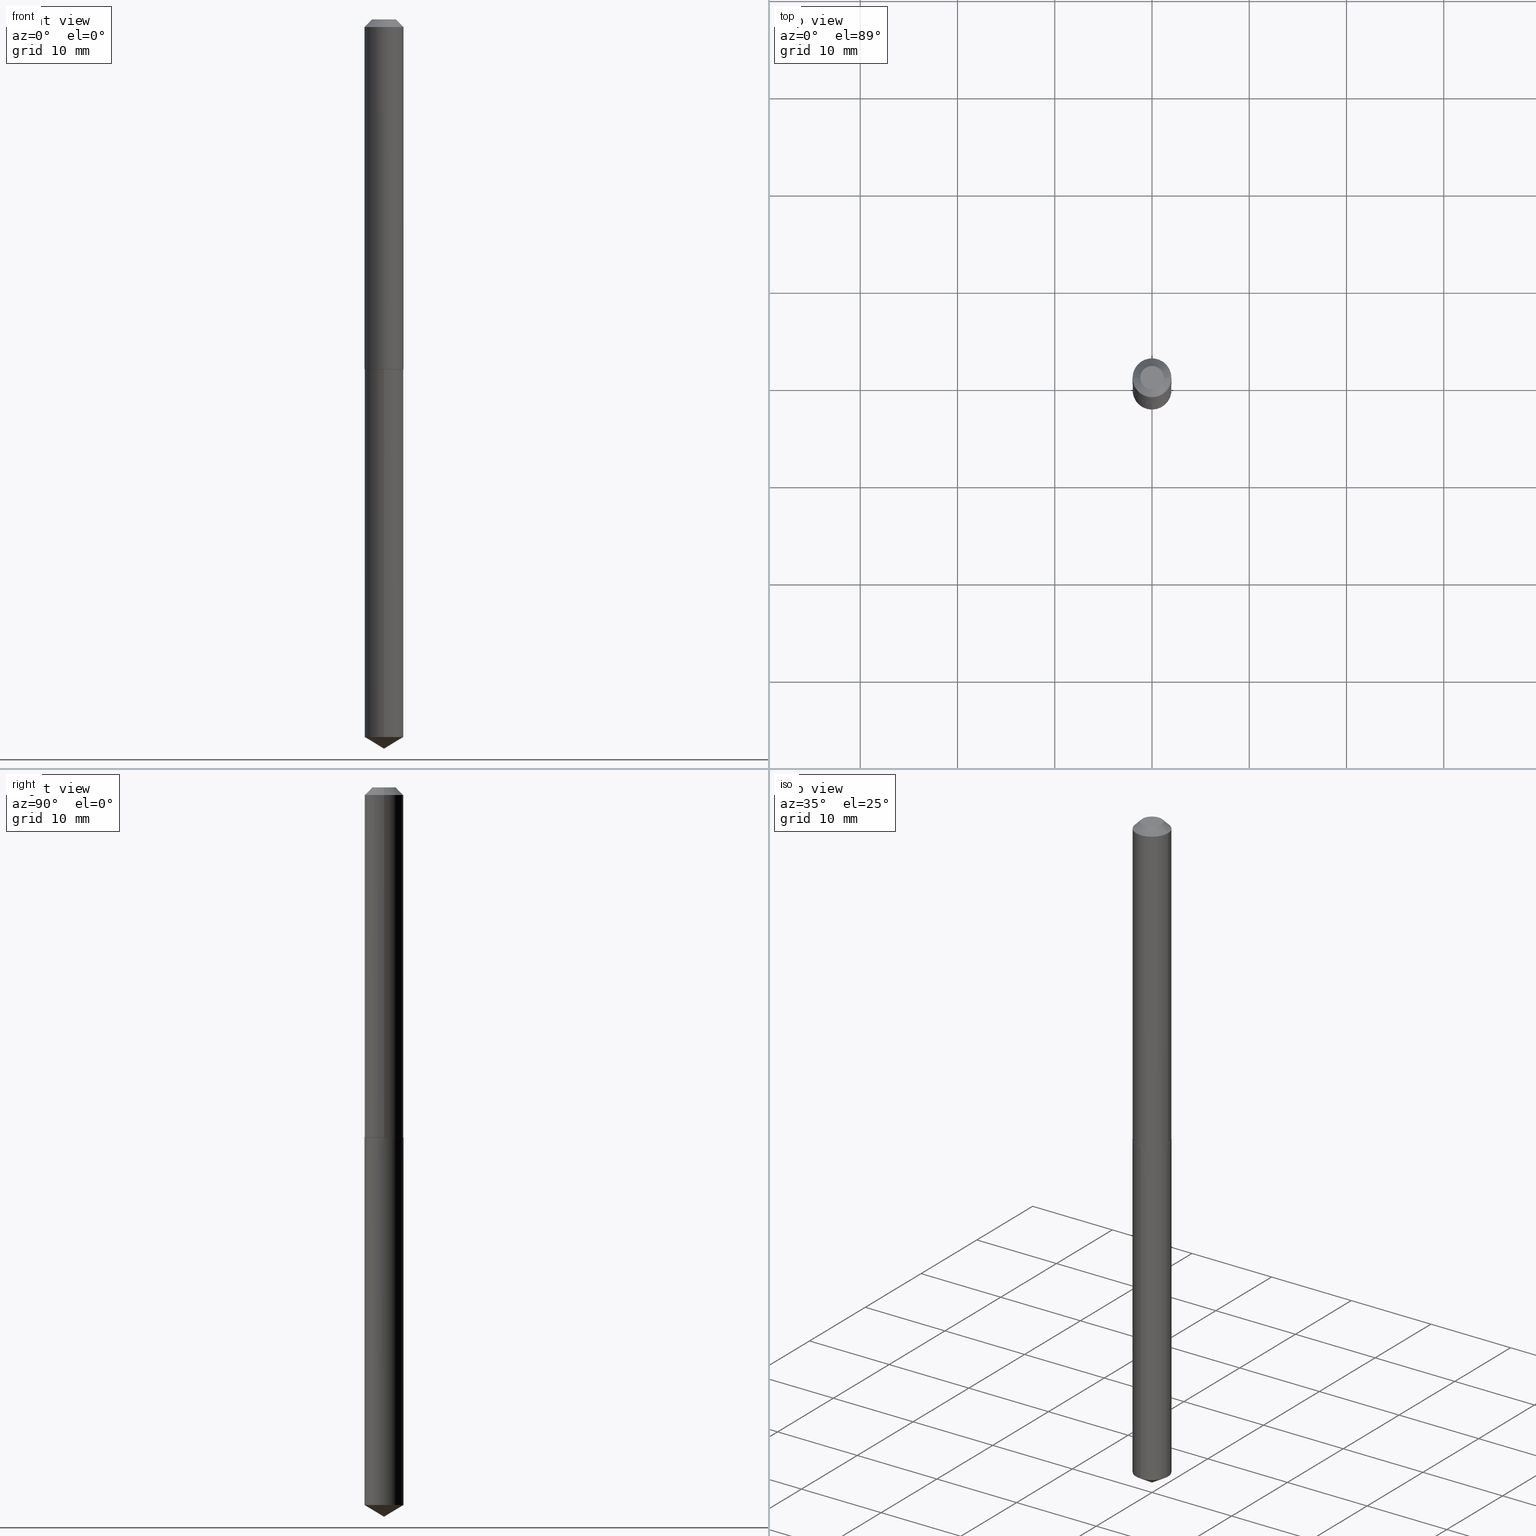
[diagram: canonical four-view strip — front | top / right | iso, engineering-drawing reading convention]
A machine part, canonical four-view strip (front | top / right | iso — engineering-drawing reading convention). The complete STEP part file that produces these views, byte-faithful:
ISO-10303-21;
HEADER;
FILE_DESCRIPTION (( 'STEP AP203' ),
    '1' );
FILE_NAME ('68277.STEP',
    '2024-04-23T12:56:48',
    ( '' ),
    ( '' ),
    'SwSTEP 2.0',
    'SolidWorks 2023',
    '' );
FILE_SCHEMA (( 'CONFIG_CONTROL_DESIGN' ));
ENDSEC;

DATA;
#1 = APPROVAL_ROLE ( '' ) ;
#2 = APPROVAL_PERSON_ORGANIZATION ( #325, #74, #1 ) ;
#3 = EDGE_CURVE ( 'NONE', #166, #196, #264, .T. ) ;
#4 = EDGE_CURVE ( 'NONE', #384, #83, #84, .T. ) ;
#5 = CARTESIAN_POINT ( 'NONE',  ( 3.464984751483719742E-29, -4.947079909006852451E-15, -1.416899999999999826 ) ) ;
#6 = CARTESIAN_POINT ( 'NONE',  ( 0.07875000000000008382, -5.499083108677941345E-16, 3.839989210939303220E-30 ) ) ;
#7 = CLOSED_SHELL ( 'NONE', ( #204, #92, #181, #358, #179, #208, #273, #155 ) ) ;
#8 = AXIS2_PLACEMENT_3D ( 'NONE', #47, #278, #56 ) ;
#9 = DIRECTION ( 'NONE',  ( -2.445110311145860319E-29, 3.491994724143659644E-15, 1.000000000000000000 ) ) ;
#10 = CARTESIAN_POINT ( 'NONE',  ( -8.904375562056331794E-28, 1.271696729006239272E-13, 36.41727874015747801 ) ) ;
#11 = DIRECTION ( 'NONE',  ( 2.445468806185136597E-29, -3.491481338843145583E-15, -1.000000000000000000 ) ) ;
#12 = AXIS2_PLACEMENT_3D ( 'NONE', #10, #37, #64 ) ;
#13 = AXIS2_PLACEMENT_3D ( 'NONE', #307, #78, #312 ) ;
#14 = CC_DESIGN_APPROVAL ( #74, ( #121 ) ) ;
#15 = DIRECTION ( 'NONE',  ( -2.445468806185136597E-29, 3.491481338843145583E-15, 1.000000000000000000 ) ) ;
#16 = DIRECTION ( 'NONE',  ( 1.000000000000000000, -6.982962677686261189E-15, 0.000000000000000000 ) ) ;
#17 = ORIENTED_EDGE ( 'NONE', *, *, #72, .T. ) ;
#18 = LINE ( 'NONE', #42, #227 ) ;
#19 = DIRECTION ( 'NONE',  ( -2.445110311145860319E-29, 3.491994724143659644E-15, 1.000000000000000000 ) ) ;
#20 = CONICAL_SURFACE ( 'NONE', #12, 65.52281426576982426, 1.029744258676663859 ) ;
#21 = CARTESIAN_POINT ( 'NONE',  ( -5.499083108677586358E-16, -0.07875000000000495493, -1.417399999999999549 ) ) ;
#22 = AXIS2_PLACEMENT_3D ( 'NONE', #49, #372, #102 ) ;
#23 = ADVANCED_FACE ( 'NONE', ( #295 ), #20, .T. ) ;
#24 = SECURITY_CLASSIFICATION ( '', '', #385 ) ;
#25 = ORIENTED_EDGE ( 'NONE', *, *, #120, .T. ) ;
#26 = ORIENTED_EDGE ( 'NONE', *, *, #4, .F. ) ;
#27 = COORDINATED_UNIVERSAL_TIME_OFFSET ( 5, 0, .BEHIND. ) ;
#28 = EDGE_LOOP ( 'NONE', ( #67, #26 ) ) ;
#29 =( LENGTH_UNIT ( ) NAMED_UNIT ( * ) SI_UNIT ( $, .METRE. ) );
#30 = CLOSED_SHELL ( 'NONE', ( #150, #225, #23, #380, #54 ) ) ;
#31 = CONICAL_SURFACE ( 'NONE', #351, 0.07875000000000000056, 0.7853981633974450594 ) ;
#32 = LOCAL_TIME ( 8, 56, 48.00000000000000000, #34 ) ;
#33 = CARTESIAN_POINT ( 'NONE',  ( 5.595524044111500950E-16, 0.07874999999999504618, -1.417399999999999993 ) ) ;
#34 = COORDINATED_UNIVERSAL_TIME_OFFSET ( 5, 0, .BEHIND. ) ;
#35 = CARTESIAN_POINT ( 'NONE',  ( -0.07875000000000015321, -4.387527504595772071E-15, -1.416899999999999826 ) ) ;
#36 = EDGE_CURVE ( 'NONE', #221, #168, #129, .T. ) ;
#37 = DIRECTION ( 'NONE',  ( -2.445110311145860319E-29, 3.491994724143659644E-15, 1.000000000000000000 ) ) ;
#38 = DIRECTION ( 'NONE',  ( 1.000000000000000000, -6.982962677686267499E-15, 4.876176775795935232E-29 ) ) ;
#39 = AXIS2_PLACEMENT_3D ( 'NONE', #128, #341, #218 ) ;
#40 = FACE_OUTER_BOUND ( 'NONE', #313, .T. ) ;
#41 = EDGE_LOOP ( 'NONE', ( #214, #52, #87, #291 ) ) ;
#42 = CARTESIAN_POINT ( 'NONE',  ( 5.595524044111134130E-16, 0.07874999999999504618, -1.417399999999999993 ) ) ;
#43 = PRODUCT ( '68277', '68277', '', ( #141 ) ) ;
#44 = CARTESIAN_POINT ( 'NONE',  ( 7.642090019328601786E-31, -1.091087918388490144E-16, -0.03125000000000020123 ) ) ;
#45 = CONICAL_SURFACE ( 'NONE', #257, 0.07875000000000015321, 0.7853981633973801113 ) ;
#46 = VECTOR ( 'NONE', #376, 39.37007874015748143 ) ;
#47 = CARTESIAN_POINT ( 'NONE',  ( -2.949913012720682071E-47, 4.211693974208512757E-33, 1.206277097160140970E-18 ) ) ;
#48 = EDGE_LOOP ( 'NONE', ( #347, #381, #365 ) ) ;
#49 = CARTESIAN_POINT ( 'NONE',  ( 3.466207485886812543E-29, -4.948825649676273954E-15, -1.417399999999999771 ) ) ;
#50 = ORIENTED_EDGE ( 'NONE', *, *, #308, .T. ) ;
#51 = DIRECTION ( 'NONE',  ( -2.445468806185136597E-29, 3.491481338843145583E-15, 1.000000000000000000 ) ) ;
#52 = ORIENTED_EDGE ( 'NONE', *, *, #69, .T. ) ;
#53 = APPROVAL_DATE_TIME ( #353, #74 ) ;
#54 = ADVANCED_FACE ( 'NONE', ( #60 ), #65, .F. ) ;
#55 = ORIENTED_EDGE ( 'NONE', *, *, #69, .F. ) ;
#56 = DIRECTION ( 'NONE',  ( 1.000000000000000000, -6.982962677686267499E-15, 4.876182450887182109E-29 ) ) ;
#57 = EDGE_LOOP ( 'NONE', ( #112, #50, #224, #193 ) ) ;
#58 = LINE ( 'NONE', #173, #76 ) ;
#59 = CALENDAR_DATE ( 2024, 23, 4 ) ;
#60 = FACE_OUTER_BOUND ( 'NONE', #116, .T. ) ;
#61 = EDGE_CURVE ( 'NONE', #241, #196, #58, .T. ) ;
#62 = AXIS2_PLACEMENT_3D ( 'NONE', #343, #15, #251 ) ;
#63 = LINE ( 'NONE', #183, #360 ) ;
#64 = DIRECTION ( 'NONE',  ( -6.982962677686265133E-15, -1.000000000000000000, 3.468864327941520456E-15 ) ) ;
#65 = PLANE ( 'NONE',  #330 ) ;
#66 = VECTOR ( 'NONE', #293, 39.37007874015748143 ) ;
#67 = ORIENTED_EDGE ( 'NONE', *, *, #279, .F. ) ;
#68 = CC_DESIGN_APPROVAL ( #222, ( #146 ) ) ;
#69 = EDGE_CURVE ( 'NONE', #384, #81, #99, .T. ) ;
#70 = CARTESIAN_POINT ( 'NONE',  ( 0.000000000000000000, 0.000000000000000000, 0.000000000000000000 ) ) ;
#71 = ORIENTED_EDGE ( 'NONE', *, *, #308, .F. ) ;
#72 = EDGE_CURVE ( 'NONE', #83, #142, #63, .T. ) ;
#73 = CARTESIAN_POINT ( 'NONE',  ( 7.642090019328601786E-31, -1.091087918388490144E-16, -0.03125000000000020123 ) ) ;
#74 = APPROVAL ( #317, 'UNSPECIFIED' ) ;
#75 = CARTESIAN_POINT ( 'NONE',  ( 3.466207485886812543E-29, -4.948825649676273954E-15, -1.417399999999999771 ) ) ;
#76 = VECTOR ( 'NONE', #334, 39.37007874015748854 ) ;
#77 = VECTOR ( 'NONE', #185, 39.37007874015748143 ) ;
#78 = DIRECTION ( 'NONE',  ( -2.445110311145860319E-29, 3.491994724143659644E-15, 1.000000000000000000 ) ) ;
#79 = ORIENTED_EDGE ( 'NONE', *, *, #263, .F. ) ;
#80 = CARTESIAN_POINT ( 'NONE',  ( 7.104732681127439624E-29, -1.014520093283874505E-14, -2.905482226251580258 ) ) ;
#81 = VERTEX_POINT ( 'NONE', #144 ) ;
#82 = PERSON_AND_ORGANIZATION ( #236, #203 ) ;
#83 = VERTEX_POINT ( 'NONE', #127 ) ;
#84 = CIRCLE ( 'NONE', #298, 0.07825000000000031930 ) ;
#85 = PERSON_AND_ORGANIZATION_ROLE ( 'creator' ) ;
#86 = AXIS2_PLACEMENT_3D ( 'NONE', #70, #103, #215 ) ;
#87 = ORIENTED_EDGE ( 'NONE', *, *, #248, .F. ) ;
#88 = DIRECTION ( 'NONE',  ( -6.982962677686264344E-15, -1.000000000000000000, 3.469013325287953293E-15 ) ) ;
#89 = ORIENTED_EDGE ( 'NONE', *, *, #262, .F. ) ;
#90 = CARTESIAN_POINT ( 'NONE',  ( 3.464984751483719742E-29, -4.947079909006852451E-15, -1.416899999999999826 ) ) ;
#91 = AXIS2_PLACEMENT_3D ( 'NONE', #117, #231, #175 ) ;
#92 = ADVANCED_FACE ( 'NONE', ( #184 ), #176, .T. ) ;
#93 = APPROVAL_ROLE ( '' ) ;
#94 = CARTESIAN_POINT ( 'NONE',  ( -0.04749999999999999362, 3.862451231095210752E-16, 1.206277097157630713E-18 ) ) ;
#95 = AXIS2_PLACEMENT_3D ( 'NONE', #210, #9, #126 ) ;
#96 = CIRCLE ( 'NONE', #377, 0.07875000000000015321 ) ;
#97 = DIRECTION ( 'NONE',  ( -2.445468806185136597E-29, 3.491481338843145583E-15, 1.000000000000000000 ) ) ;
#98 = PERSON_AND_ORGANIZATION ( #236, #203 ) ;
#99 = LINE ( 'NONE', #35, #66 ) ;
#100 = CARTESIAN_POINT ( 'NONE',  ( 7.642090019328601786E-31, -1.091087918388490144E-16, -0.03125000000000020123 ) ) ;
#101 = DIRECTION ( 'NONE',  ( -1.000000000000000000, 6.982962677686265922E-15, 0.000000000000000000 ) ) ;
#102 = DIRECTION ( 'NONE',  ( -6.982962677686264344E-15, -1.000000000000000000, 3.469013325287953293E-15 ) ) ;
#103 = DIRECTION ( 'NONE',  ( -2.445468806185136597E-29, 3.491481338843145583E-15, 1.000000000000000000 ) ) ;
#104 = ORIENTED_EDGE ( 'NONE', *, *, #337, .F. ) ;
#105 = AXIS2_PLACEMENT_3D ( 'NONE', #373, #190, #132 ) ;
#106 = CARTESIAN_POINT ( 'NONE',  ( 0.07875000000000000056, -6.590171027066424463E-16, -0.03125000000000020123 ) ) ;
#107 = PRODUCT_DEFINITION_SHAPE ( 'NONE', 'NONE',  #146 ) ;
#108 = ORIENTED_EDGE ( 'NONE', *, *, #36, .F. ) ;
#109 = DIMENSIONAL_EXPONENTS ( 1.000000000000000000, 0.000000000000000000, 0.000000000000000000, 0.000000000000000000, 0.000000000000000000, 0.000000000000000000, 0.000000000000000000 ) ;
#110 = VERTEX_POINT ( 'NONE', #33 ) ;
#111 = DIRECTION ( 'NONE',  ( -2.445110311145860319E-29, 3.491994724143659644E-15, 1.000000000000000000 ) ) ;
#112 = ORIENTED_EDGE ( 'NONE', *, *, #262, .T. ) ;
#113 = PERSON_AND_ORGANIZATION ( #236, #203 ) ;
#114 = VECTOR ( 'NONE', #232, 39.37007874015748143 ) ;
#115 = LOCAL_TIME ( 8, 56, 48.00000000000000000, #125 ) ;
#116 = EDGE_LOOP ( 'NONE', ( #288, #388 ) ) ;
#117 = CARTESIAN_POINT ( 'NONE',  ( 0.000000000000000000, 0.000000000000000000, 0.000000000000000000 ) ) ;
#118 = CARTESIAN_POINT ( 'NONE',  ( 0.07875000000000000056, -6.493730091633570889E-16, -0.03125000000000020123 ) ) ;
#119 = CALENDAR_DATE ( 2024, 23, 4 ) ;
#120 = EDGE_CURVE ( 'NONE', #142, #221, #153, .T. ) ;
#121 = PRODUCT_DEFINITION_FORMATION_WITH_SPECIFIED_SOURCE ( 'ANY', '', #43, .NOT_KNOWN. ) ;
#122 = DIRECTION ( 'NONE',  ( -2.445468806185136597E-29, 3.491481338843145583E-15, 1.000000000000000000 ) ) ;
#123 = DIRECTION ( 'NONE',  ( 1.000000000000000000, -6.982962677686264344E-15, 0.000000000000000000 ) ) ;
#124 = AXIS2_PLACEMENT_3D ( 'NONE', #75, #188, #309 ) ;
#125 = COORDINATED_UNIVERSAL_TIME_OFFSET ( 5, 0, .BEHIND. ) ;
#126 = DIRECTION ( 'NONE',  ( -6.982962677686264344E-15, -1.000000000000000000, 3.469013325287953293E-15 ) ) ;
#127 = CARTESIAN_POINT ( 'NONE',  ( 0.07825000000000031930, -5.495242479205226659E-15, -1.417399999999999771 ) ) ;
#128 = CARTESIAN_POINT ( 'NONE',  ( -2.949913012720682071E-47, 4.211693974208512757E-33, 1.206277097160140970E-18 ) ) ;
#129 = CIRCLE ( 'NONE', #234, 0.07875000000000000056 ) ;
#130 = CIRCLE ( 'NONE', #265, 0.07875000000000015321 ) ;
#131 = DIRECTION ( 'NONE',  ( -2.445468806185136597E-29, 3.491481338843145583E-15, 1.000000000000000000 ) ) ;
#132 = DIRECTION ( 'NONE',  ( -6.982962677686265133E-15, -1.000000000000000000, 3.468864327941520456E-15 ) ) ;
#133 = ORIENTED_EDGE ( 'NONE', *, *, #275, .T. ) ;
#134 = CARTESIAN_POINT ( 'NONE',  ( 3.464984751483719742E-29, -4.947079909006852451E-15, -1.416899999999999826 ) ) ;
#135 = DIRECTION ( 'NONE',  ( -6.982962677686264344E-15, -1.000000000000000000, 6.938026650575906587E-15 ) ) ;
#136 = APPROVAL_PERSON_ORGANIZATION ( #201, #222, #223 ) ;
#137 = DIRECTION ( 'NONE',  ( 1.000000000000000000, -6.982962677686261189E-15, 0.000000000000000000 ) ) ;
#138 = EDGE_LOOP ( 'NONE', ( #319, #354, #256, #340 ) ) ;
#139 =( CONVERSION_BASED_UNIT ( 'INCH', #199 ) LENGTH_UNIT ( ) NAMED_UNIT ( #109 ) );
#140 = ORIENTED_EDGE ( 'NONE', *, *, #244, .T. ) ;
#141 = MECHANICAL_CONTEXT ( 'NONE', #329, 'mechanical' ) ;
#142 = VERTEX_POINT ( 'NONE', #362 ) ;
#143 = CARTESIAN_POINT ( 'NONE',  ( 3.466207485886812543E-29, -4.948825649676273954E-15, -1.417399999999999771 ) ) ;
#144 = CARTESIAN_POINT ( 'NONE',  ( -0.07875000000000015321, -4.387527504595772071E-15, -1.416899999999999826 ) ) ;
#145 = DATE_AND_TIME ( #59, #285 ) ;
#146 = PRODUCT_DEFINITION ( 'UNKNOWN', '', #121, #157 ) ;
#147 = APPROVAL_STATUS ( 'not_yet_approved' ) ;
#148 = DATE_AND_TIME ( #335, #32 ) ;
#149 = AXIS2_PLACEMENT_3D ( 'NONE', #90, #326, #202 ) ;
#150 = ADVANCED_FACE ( 'NONE', ( #304 ), #336, .T. ) ;
#151 = CARTESIAN_POINT ( 'NONE',  ( 0.000000000000000000, 0.000000000000000000, 0.000000000000000000 ) ) ;
#152 = LINE ( 'NONE', #118, #114 ) ;
#153 = LINE ( 'NONE', #6, #284 ) ;
#154 = LOCAL_TIME ( 8, 56, 48.00000000000000000, #27 ) ;
#155 = ADVANCED_FACE ( 'NONE', ( #40 ), #272, .F. ) ;
#156 = DIRECTION ( 'NONE',  ( -2.445468806185136597E-29, 3.491481338843145583E-15, 1.000000000000000000 ) ) ;
#157 = DESIGN_CONTEXT ( 'detailed design', #367, 'design' ) ;
#158 = VERTEX_POINT ( 'NONE', #390 ) ;
#159 = DIRECTION ( 'NONE',  ( -2.445110311145860319E-29, 3.491994724143659644E-15, 1.000000000000000000 ) ) ;
#160 = EDGE_CURVE ( 'NONE', #158, #221, #152, .T. ) ;
#161 = DIRECTION ( 'NONE',  ( 1.000000000000000000, -6.982962677686264344E-15, 0.000000000000000000 ) ) ;
#162 = CIRCLE ( 'NONE', #22, 0.07875000000000000056 ) ;
#163 = LINE ( 'NONE', #281, #77 ) ;
#164 = ORIENTED_EDGE ( 'NONE', *, *, #369, .F. ) ;
#165 = CYLINDRICAL_SURFACE ( 'NONE', #86, 0.07875000000000008382 ) ;
#166 = VERTEX_POINT ( 'NONE', #269 ) ;
#167 = DIRECTION ( 'NONE',  ( -2.445468806185136597E-29, 3.491481338843145583E-15, 1.000000000000000000 ) ) ;
#168 = VERTEX_POINT ( 'NONE', #356 ) ;
#169 = PRODUCT_RELATED_PRODUCT_CATEGORY ( 'detail', '', ( #43 ) ) ;
#170 = ORIENTED_EDGE ( 'NONE', *, *, #3, .T. ) ;
#171 = DATE_TIME_ROLE ( 'creation_date' ) ;
#172 = ORIENTED_EDGE ( 'NONE', *, *, #160, .T. ) ;
#173 = CARTESIAN_POINT ( 'NONE',  ( 7.219921726751495995E-29, -1.031116202145139652E-14, -2.952799999999999869 ) ) ;
#174 = CIRCLE ( 'NONE', #8, 0.04749999999999999362 ) ;
#175 = DIRECTION ( 'NONE',  ( 1.000000000000000000, 0.000000000000000000, 0.000000000000000000 ) ) ;
#176 = CYLINDRICAL_SURFACE ( 'NONE', #255, 0.07875000000000008382 ) ;
#177 = PERSON_AND_ORGANIZATION ( #236, #203 ) ;
#178 = UNCERTAINTY_MEASURE_WITH_UNIT (LENGTH_MEASURE( 1.000000000000000082E-05 ), #139, 'distance_accuracy_value', 'NONE');
#179 = ADVANCED_FACE ( 'NONE', ( #182 ), #318, .T. ) ;
#180 = CIRCLE ( 'NONE', #62, 0.07825000000000031930 ) ;
#181 = ADVANCED_FACE ( 'NONE', ( #267 ), #45, .T. ) ;
#182 = FACE_OUTER_BOUND ( 'NONE', #350, .T. ) ;
#183 = CARTESIAN_POINT ( 'NONE',  ( 0.07875000000000015321, -5.496988219874646585E-15, -1.416899999999999826 ) ) ;
#184 = FACE_OUTER_BOUND ( 'NONE', #200, .T. ) ;
#185 = DIRECTION ( 'NONE',  ( -2.445110311145860319E-29, 3.491994724143659644E-15, 1.000000000000000000 ) ) ;
#186 = DIRECTION ( 'NONE',  ( -1.000000000000000000, 6.982962677686265922E-15, 0.000000000000000000 ) ) ;
#187 = MANIFOLD_SOLID_BREP ( 'Body-Move/Copy2[2]', #7 ) ;
#188 = DIRECTION ( 'NONE',  ( -2.438088387897960049E-29, 3.491481338843145188E-15, 1.000000000000000000 ) ) ;
#189 = AXIS2_PLACEMENT_3D ( 'NONE', #80, #192, #314 ) ;
#190 = DIRECTION ( 'NONE',  ( -2.445110311145860319E-29, 3.491994724143659644E-15, 1.000000000000000000 ) ) ;
#191 = ORIENTED_EDGE ( 'NONE', *, *, #120, .F. ) ;
#192 = DIRECTION ( 'NONE',  ( -2.445110311145860319E-29, 3.491994724143659644E-15, 1.000000000000000000 ) ) ;
#193 = ORIENTED_EDGE ( 'NONE', *, *, #275, .F. ) ;
#194 = CC_DESIGN_PERSON_AND_ORGANIZATION_ASSIGNMENT ( #287, #85, ( #121 ) ) ;
#195 = COORDINATED_UNIVERSAL_TIME_OFFSET ( 5, 0, .BEHIND. ) ;
#196 = VERTEX_POINT ( 'NONE', #359 ) ;
#197 = PERSON_AND_ORGANIZATION ( #236, #203 ) ;
#198 = VERTEX_POINT ( 'NONE', #94 ) ;
#199 = LENGTH_MEASURE_WITH_UNIT ( LENGTH_MEASURE( 0.02539999999999999897 ), #29 );
#200 = EDGE_LOOP ( 'NONE', ( #286, #368, #108, #191 ) ) ;
#201 = PERSON_AND_ORGANIZATION ( #236, #203 ) ;
#202 = DIRECTION ( 'NONE',  ( 1.000000000000000000, -6.982962677686261189E-15, 0.000000000000000000 ) ) ;
#203 = ORGANIZATION ( 'UNSPECIFIED', 'UNSPECIFIED', '' ) ;
#204 = ADVANCED_FACE ( 'NONE', ( #207 ), #299, .T. ) ;
#205 = EDGE_CURVE ( 'NONE', #81, #168, #339, .T. ) ;
#206 = APPROVAL ( #302, 'UNSPECIFIED' ) ;
#207 = FACE_OUTER_BOUND ( 'NONE', #345, .T. ) ;
#208 = ADVANCED_FACE ( 'NONE', ( #346 ), #165, .T. ) ;
#209 = EDGE_CURVE ( 'NONE', #198, #158, #344, .T. ) ;
#210 = CARTESIAN_POINT ( 'NONE',  ( 3.466207485886812543E-29, -4.948825649676273954E-15, -1.417399999999999771 ) ) ;
#211 = CC_DESIGN_PERSON_AND_ORGANIZATION_ASSIGNMENT ( #177, #253, ( #43 ) ) ;
#212 = CARTESIAN_POINT ( 'NONE',  ( 3.466207485886812543E-29, -4.948825649676273954E-15, -1.417399999999999771 ) ) ;
#213 = LINE ( 'NONE', #371, #277 ) ;
#214 = ORIENTED_EDGE ( 'NONE', *, *, #279, .T. ) ;
#215 = DIRECTION ( 'NONE',  ( 1.000000000000000000, -6.982962677686267499E-15, 4.876176775795935232E-29 ) ) ;
#216 = FACE_OUTER_BOUND ( 'NONE', #28, .T. ) ;
#217 = ADVANCED_BREP_SHAPE_REPRESENTATION ( '68277', ( #316, #187, #91 ), #338 ) ;
#218 = DIRECTION ( 'NONE',  ( 1.000000000000000000, -6.982962677686267499E-15, 4.876182450887182109E-29 ) ) ;
#219 = VERTEX_POINT ( 'NONE', #21 ) ;
#220 = CARTESIAN_POINT ( 'NONE',  ( 3.464984751483719742E-29, -4.947079909006852451E-15, -1.416899999999999826 ) ) ;
#221 = VERTEX_POINT ( 'NONE', #106 ) ;
#222 = APPROVAL ( #147, 'UNSPECIFIED' ) ;
#223 = APPROVAL_ROLE ( '' ) ;
#224 = ORIENTED_EDGE ( 'NONE', *, *, #348, .F. ) ;
#225 = ADVANCED_FACE ( 'NONE', ( #249 ), #258, .T. ) ;
#226 = EDGE_LOOP ( 'NONE', ( #250, #140, #25, #104 ) ) ;
#227 = VECTOR ( 'NONE', #159, 39.37007874015748143 ) ;
#228 = APPROVAL_PERSON_ORGANIZATION ( #98, #206, #93 ) ;
#229 = DATE_AND_TIME ( #260, #235 ) ;
#230 = ORIENTED_EDGE ( 'NONE', *, *, #290, .T. ) ;
#231 = DIRECTION ( 'NONE',  ( 0.000000000000000000, 0.000000000000000000, 1.000000000000000000 ) ) ;
#232 = DIRECTION ( 'NONE',  ( 0.7071067811865452413, -7.319954787623248157E-15, -0.7071067811865497932 ) ) ;
#233 = FACE_OUTER_BOUND ( 'NONE', #247, .T. ) ;
#234 = AXIS2_PLACEMENT_3D ( 'NONE', #100, #97, #303 ) ;
#235 = LOCAL_TIME ( 8, 56, 48.00000000000000000, #357 ) ;
#236 = PERSON ( 'UNSPECIFIED', 'UNSPECIFIED', 'UNSPECIFIED', ('UNSPECIFIED'), ('UNSPECIFIED'), ('UNSPECIFIED') ) ;
#237 = DIRECTION ( 'NONE',  ( 1.000000000000000000, -6.982962677686261189E-15, 0.000000000000000000 ) ) ;
#238 = VECTOR ( 'NONE', #243, 39.37007874015748143 ) ;
#239 = CARTESIAN_POINT ( 'NONE',  ( 3.466207485886812543E-29, -4.948825649676273954E-15, -1.417399999999999771 ) ) ;
#240 = DIRECTION ( 'NONE',  ( 6.982962677686265922E-15, 1.000000000000000000, -3.491994724143659644E-15 ) ) ;
#241 = VERTEX_POINT ( 'NONE', #245 ) ;
#242 = CARTESIAN_POINT ( 'NONE',  ( -1.474956506360341036E-47, 2.105846987104256378E-33, 6.031385485800704849E-19 ) ) ;
#243 = DIRECTION ( 'NONE',  ( -0.7071067811865452413, 2.468850131082233000E-15, -0.7071067811865497932 ) ) ;
#244 = EDGE_CURVE ( 'NONE', #81, #142, #96, .T. ) ;
#245 = CARTESIAN_POINT ( 'NONE',  ( 7.219921726751494874E-29, -1.031116202145139652E-14, -2.952799999999999869 ) ) ;
#246 = CARTESIAN_POINT ( 'NONE',  ( -0.07875000000000000056, 4.407995190289444916E-16, -0.03125000000000020123 ) ) ;
#247 = EDGE_LOOP ( 'NONE', ( #71, #170, #133, #252 ) ) ;
#248 = EDGE_CURVE ( 'NONE', #142, #81, #130, .T. ) ;
#249 = FACE_OUTER_BOUND ( 'NONE', #322, .T. ) ;
#250 = ORIENTED_EDGE ( 'NONE', *, *, #205, .F. ) ;
#251 = DIRECTION ( 'NONE',  ( 1.000000000000000000, -6.982962677686264344E-15, 0.000000000000000000 ) ) ;
#252 = ORIENTED_EDGE ( 'NONE', *, *, #297, .F. ) ;
#253 = PERSON_AND_ORGANIZATION_ROLE ( 'design_owner' ) ;
#254 = ORIENTED_EDGE ( 'NONE', *, *, #244, .F. ) ;
#255 = AXIS2_PLACEMENT_3D ( 'NONE', #151, #259, #38 ) ;
#256 = ORIENTED_EDGE ( 'NONE', *, *, #263, .T. ) ;
#257 = AXIS2_PLACEMENT_3D ( 'NONE', #5, #122, #237 ) ;
#258 = CONICAL_SURFACE ( 'NONE', #105, 65.52281426576982426, 1.029744258676663859 ) ;
#259 = DIRECTION ( 'NONE',  ( -2.445468806185136597E-29, 3.491481338843145583E-15, 1.000000000000000000 ) ) ;
#260 = CALENDAR_DATE ( 2024, 23, 4 ) ;
#261 =( NAMED_UNIT ( * ) PLANE_ANGLE_UNIT ( ) SI_UNIT ( $, .RADIAN. ) );
#262 = EDGE_CURVE ( 'NONE', #196, #166, #310, .T. ) ;
#263 = EDGE_CURVE ( 'NONE', #198, #168, #276, .T. ) ;
#264 = CIRCLE ( 'NONE', #375, 0.07875000000000000056 ) ;
#265 = AXIS2_PLACEMENT_3D ( 'NONE', #220, #167, #16 ) ;
#266 = APPROVAL_DATE_TIME ( #148, #206 ) ;
#267 = FACE_OUTER_BOUND ( 'NONE', #41, .T. ) ;
#268 = DATE_TIME_ROLE ( 'classification_date' ) ;
#269 = CARTESIAN_POINT ( 'NONE',  ( 5.595524044111497992E-16, 0.07874999999998984201, -2.905482226251580702 ) ) ;
#270 = CC_DESIGN_SECURITY_CLASSIFICATION ( #24, ( #121 ) ) ;
#271 = DIRECTION ( 'NONE',  ( -2.445468806185136877E-29, 3.491481338843145188E-15, 1.000000000000000000 ) ) ;
#272 = PLANE ( 'NONE',  #386 ) ;
#273 = ADVANCED_FACE ( 'NONE', ( #283 ), #31, .T. ) ;
#274 = DIRECTION ( 'NONE',  ( 2.445468806185136597E-29, -3.491481338843145583E-15, -1.000000000000000000 ) ) ;
#275 = EDGE_CURVE ( 'NONE', #196, #219, #163, .T. ) ;
#276 = LINE ( 'NONE', #246, #238 ) ;
#277 = VECTOR ( 'NONE', #305, 39.37007874015748143 ) ;
#278 = DIRECTION ( 'NONE',  ( -2.445468806185136597E-29, 3.491481338843145583E-15, 1.000000000000000000 ) ) ;
#279 = EDGE_CURVE ( 'NONE', #83, #384, #180, .T. ) ;
#280 = ORIENTED_EDGE ( 'NONE', *, *, #209, .T. ) ;
#281 = CARTESIAN_POINT ( 'NONE',  ( -5.499083108677586358E-16, -0.07875000000000495493, -1.417399999999999549 ) ) ;
#282 = CARTESIAN_POINT ( 'NONE',  ( 7.104732681127439624E-29, -1.014520093283874505E-14, -2.905482226251580258 ) ) ;
#283 = FACE_OUTER_BOUND ( 'NONE', #138, .T. ) ;
#284 = VECTOR ( 'NONE', #271, 39.37007874015748143 ) ;
#285 = LOCAL_TIME ( 8, 56, 48.00000000000000000, #195 ) ;
#286 = ORIENTED_EDGE ( 'NONE', *, *, #248, .T. ) ;
#287 = PERSON_AND_ORGANIZATION ( #236, #203 ) ;
#288 = ORIENTED_EDGE ( 'NONE', *, *, #348, .T. ) ;
#289 =( NAMED_UNIT ( * ) SI_UNIT ( $, .STERADIAN. ) SOLID_ANGLE_UNIT ( ) );
#290 = EDGE_CURVE ( 'NONE', #241, #166, #213, .T. ) ;
#291 = ORIENTED_EDGE ( 'NONE', *, *, #72, .F. ) ;
#292 = APPLICATION_PROTOCOL_DEFINITION ( 'international standard', 'config_control_design', 1994, #367 ) ;
#293 = DIRECTION ( 'NONE',  ( -0.7071067811864992780, 7.493145998870180611E-15, 0.7071067811865957564 ) ) ;
#294 = CIRCLE ( 'NONE', #13, 0.07875000000000000056 ) ;
#295 = FACE_OUTER_BOUND ( 'NONE', #48, .T. ) ;
#296 = CALENDAR_DATE ( 2024, 23, 4 ) ;
#297 = EDGE_CURVE ( 'NONE', #110, #219, #294, .T. ) ;
#298 = AXIS2_PLACEMENT_3D ( 'NONE', #212, #156, #123 ) ;
#299 = CONICAL_SURFACE ( 'NONE', #387, 0.07875000000000000056, 0.7853981633974450594 ) ;
#300 = DATE_AND_TIME ( #296, #115 ) ;
#301 = DIRECTION ( 'NONE',  ( 0.7071067811864992780, -2.468850131081751401E-15, 0.7071067811865957564 ) ) ;
#302 = APPROVAL_STATUS ( 'not_yet_approved' ) ;
#303 = DIRECTION ( 'NONE',  ( 1.000000000000000000, -6.982962677686264344E-15, 0.000000000000000000 ) ) ;
#304 = FACE_OUTER_BOUND ( 'NONE', #57, .T. ) ;
#305 = DIRECTION ( 'NONE',  ( 6.090539988449813934E-15, 0.8571673007021188839, 0.5150380749100431643 ) ) ;
#306 = CC_DESIGN_PERSON_AND_ORGANIZATION_ASSIGNMENT ( #82, #389, ( #146 ) ) ;
#307 = CARTESIAN_POINT ( 'NONE',  ( 3.466207485886812543E-29, -4.948825649676273954E-15, -1.417399999999999771 ) ) ;
#308 = EDGE_CURVE ( 'NONE', #166, #110, #18, .T. ) ;
#309 = DIRECTION ( 'NONE',  ( 1.000000000000000000, -6.982962677686265922E-15, 4.876176775795935793E-29 ) ) ;
#310 = CIRCLE ( 'NONE', #189, 0.07875000000000000056 ) ;
#311 = CC_DESIGN_PERSON_AND_ORGANIZATION_ASSIGNMENT ( #197, #320, ( #121 ) ) ;
#312 = DIRECTION ( 'NONE',  ( -6.982962677686264344E-15, -1.000000000000000000, 3.469013325287953293E-15 ) ) ;
#313 = EDGE_LOOP ( 'NONE', ( #280, #315 ) ) ;
#314 = DIRECTION ( 'NONE',  ( -6.982962677686264344E-15, -1.000000000000000000, 6.938026650575906587E-15 ) ) ;
#315 = ORIENTED_EDGE ( 'NONE', *, *, #369, .T. ) ;
#316 = MANIFOLD_SOLID_BREP ( 'Body-Move/Copy2[1]', #30 ) ;
#317 = APPROVAL_STATUS ( 'not_yet_approved' ) ;
#318 = CONICAL_SURFACE ( 'NONE', #149, 0.07875000000000015321, 0.7853981633973801113 ) ;
#319 = ORIENTED_EDGE ( 'NONE', *, *, #160, .F. ) ;
#320 = PERSON_AND_ORGANIZATION_ROLE ( 'design_supplier' ) ;
#321 = CC_DESIGN_DATE_AND_TIME_ASSIGNMENT ( #300, #268, ( #24 ) ) ;
#322 = EDGE_LOOP ( 'NONE', ( #374, #230, #89 ) ) ;
#323 = PERSON_AND_ORGANIZATION_ROLE ( 'classification_officer' ) ;
#324 = DIRECTION ( 'NONE',  ( 2.445110311145860039E-29, -3.491994724143659644E-15, -1.000000000000000000 ) ) ;
#325 = PERSON_AND_ORGANIZATION ( #236, #203 ) ;
#326 = DIRECTION ( 'NONE',  ( -2.445468806185136597E-29, 3.491481338843145583E-15, 1.000000000000000000 ) ) ;
#327 = AXIS2_PLACEMENT_3D ( 'NONE', #143, #111, #88 ) ;
#328 = CARTESIAN_POINT ( 'NONE',  ( -0.07825000000000031930, -4.390176731769882483E-15, -1.417399999999999771 ) ) ;
#329 = APPLICATION_CONTEXT ( 'configuration controlled 3d designs of mechanical parts and assemblies' ) ;
#330 = AXIS2_PLACEMENT_3D ( 'NONE', #239, #324, #240 ) ;
#331 = AXIS2_PLACEMENT_3D ( 'NONE', #44, #131, #161 ) ;
#332 = CARTESIAN_POINT ( 'NONE',  ( 7.642090019328601786E-31, -1.091087918388490144E-16, -0.03125000000000020123 ) ) ;
#333 = SHAPE_DEFINITION_REPRESENTATION ( #107, #217 ) ;
#334 = DIRECTION ( 'NONE',  ( -5.985567269335975989E-15, -0.8571673007021152202, 0.5150380749100490485 ) ) ;
#335 = CALENDAR_DATE ( 2024, 23, 4 ) ;
#336 = CYLINDRICAL_SURFACE ( 'NONE', #95, 0.07875000000000000056 ) ;
#337 = EDGE_CURVE ( 'NONE', #168, #221, #370, .T. ) ;
#338 =( GEOMETRIC_REPRESENTATION_CONTEXT ( 3 ) GLOBAL_UNCERTAINTY_ASSIGNED_CONTEXT ( ( #178 ) ) GLOBAL_UNIT_ASSIGNED_CONTEXT ( ( #139, #261, #289 ) ) REPRESENTATION_CONTEXT ( 'NONE', 'WORKASPACE' ) );
#339 = LINE ( 'NONE', #379, #46 ) ;
#340 = ORIENTED_EDGE ( 'NONE', *, *, #337, .T. ) ;
#341 = DIRECTION ( 'NONE',  ( -2.445468806185136597E-29, 3.491481338843145583E-15, 1.000000000000000000 ) ) ;
#342 = PLANE ( 'NONE',  #124 ) ;
#343 = CARTESIAN_POINT ( 'NONE',  ( 3.466207485886812543E-29, -4.948825649676273954E-15, -1.417399999999999771 ) ) ;
#344 = CIRCLE ( 'NONE', #39, 0.04749999999999999362 ) ;
#345 = EDGE_LOOP ( 'NONE', ( #164, #172, #352, #79 ) ) ;
#346 = FACE_OUTER_BOUND ( 'NONE', #226, .T. ) ;
#347 = ORIENTED_EDGE ( 'NONE', *, *, #290, .F. ) ;
#348 = EDGE_CURVE ( 'NONE', #219, #110, #162, .T. ) ;
#349 = APPROVAL_DATE_TIME ( #229, #222 ) ;
#350 = EDGE_LOOP ( 'NONE', ( #55, #378, #17, #254 ) ) ;
#351 = AXIS2_PLACEMENT_3D ( 'NONE', #73, #11, #186 ) ;
#352 = ORIENTED_EDGE ( 'NONE', *, *, #36, .T. ) ;
#353 = DATE_AND_TIME ( #119, #154 ) ;
#354 = ORIENTED_EDGE ( 'NONE', *, *, #209, .F. ) ;
#355 = CYLINDRICAL_SURFACE ( 'NONE', #327, 0.07875000000000000056 ) ;
#356 = CARTESIAN_POINT ( 'NONE',  ( -0.07875000000000000056, -1.968541946011770002E-15, -0.03125000000000020123 ) ) ;
#357 = COORDINATED_UNIVERSAL_TIME_OFFSET ( 5, 0, .BEHIND. ) ;
#358 = ADVANCED_FACE ( 'NONE', ( #216 ), #342, .F. ) ;
#359 = CARTESIAN_POINT ( 'NONE',  ( -5.499083108677222496E-16, -0.07875000000001011746, -2.905482226251579814 ) ) ;
#360 = VECTOR ( 'NONE', #301, 39.37007874015748143 ) ;
#361 = CC_DESIGN_APPROVAL ( #206, ( #24 ) ) ;
#362 = CARTESIAN_POINT ( 'NONE',  ( 0.07875000000000015321, -5.496988219874646585E-15, -1.416899999999999826 ) ) ;
#363 = DIRECTION ( 'NONE',  ( -1.000000000000000000, 6.982962677686265922E-15, -4.876176775795935793E-29 ) ) ;
#364 = CC_DESIGN_DATE_AND_TIME_ASSIGNMENT ( #145, #171, ( #146 ) ) ;
#365 = ORIENTED_EDGE ( 'NONE', *, *, #3, .F. ) ;
#366 = DIRECTION ( 'NONE',  ( 2.438088387897960049E-29, -3.491481338843145188E-15, -1.000000000000000000 ) ) ;
#367 = APPLICATION_CONTEXT ( 'configuration controlled 3d designs of mechanical parts and assemblies' ) ;
#368 = ORIENTED_EDGE ( 'NONE', *, *, #205, .T. ) ;
#369 = EDGE_CURVE ( 'NONE', #158, #198, #174, .T. ) ;
#370 = CIRCLE ( 'NONE', #331, 0.07875000000000000056 ) ;
#371 = CARTESIAN_POINT ( 'NONE',  ( 7.220946899904671897E-29, -1.030970667680149863E-14, -2.952799999999999869 ) ) ;
#372 = DIRECTION ( 'NONE',  ( -2.445110311145860319E-29, 3.491994724143659644E-15, 1.000000000000000000 ) ) ;
#373 = CARTESIAN_POINT ( 'NONE',  ( -8.904375562056331794E-28, 1.271696729006239272E-13, 36.41727874015747801 ) ) ;
#374 = ORIENTED_EDGE ( 'NONE', *, *, #61, .F. ) ;
#375 = AXIS2_PLACEMENT_3D ( 'NONE', #282, #19, #135 ) ;
#376 = DIRECTION ( 'NONE',  ( -2.445468806185136877E-29, 3.491481338843145188E-15, 1.000000000000000000 ) ) ;
#377 = AXIS2_PLACEMENT_3D ( 'NONE', #134, #51, #137 ) ;
#378 = ORIENTED_EDGE ( 'NONE', *, *, #4, .T. ) ;
#379 = CARTESIAN_POINT ( 'NONE',  ( -0.07875000000000008382, 5.595524044110794920E-16, -3.873661383575742696E-30 ) ) ;
#380 = ADVANCED_FACE ( 'NONE', ( #233 ), #355, .T. ) ;
#381 = ORIENTED_EDGE ( 'NONE', *, *, #61, .T. ) ;
#382 = CC_DESIGN_PERSON_AND_ORGANIZATION_ASSIGNMENT ( #113, #323, ( #24 ) ) ;
#383 = APPLICATION_PROTOCOL_DEFINITION ( 'international standard', 'config_control_design', 1994, #329 ) ;
#384 = VERTEX_POINT ( 'NONE', #328 ) ;
#385 = SECURITY_CLASSIFICATION_LEVEL ( 'unclassified' ) ;
#386 = AXIS2_PLACEMENT_3D ( 'NONE', #242, #366, #363 ) ;
#387 = AXIS2_PLACEMENT_3D ( 'NONE', #332, #274, #101 ) ;
#388 = ORIENTED_EDGE ( 'NONE', *, *, #297, .T. ) ;
#389 = PERSON_AND_ORGANIZATION_ROLE ( 'creator' ) ;
#390 = CARTESIAN_POINT ( 'NONE',  ( 0.04749999999999999362, -4.876233320287524565E-16, 1.206277097163005213E-18 ) ) ;
ENDSEC;
END-ISO-10303-21;
